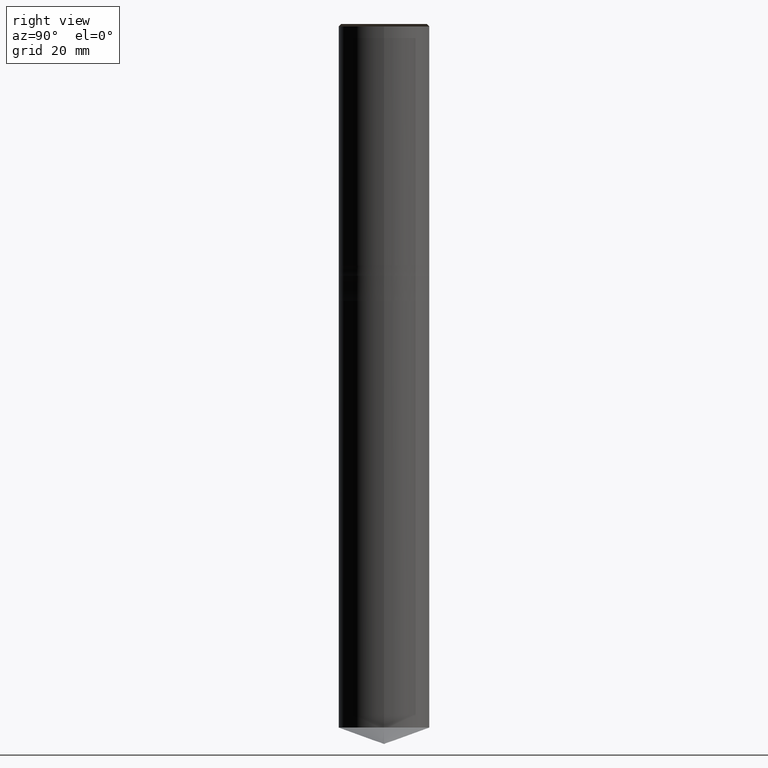
[diagram: clean part render]
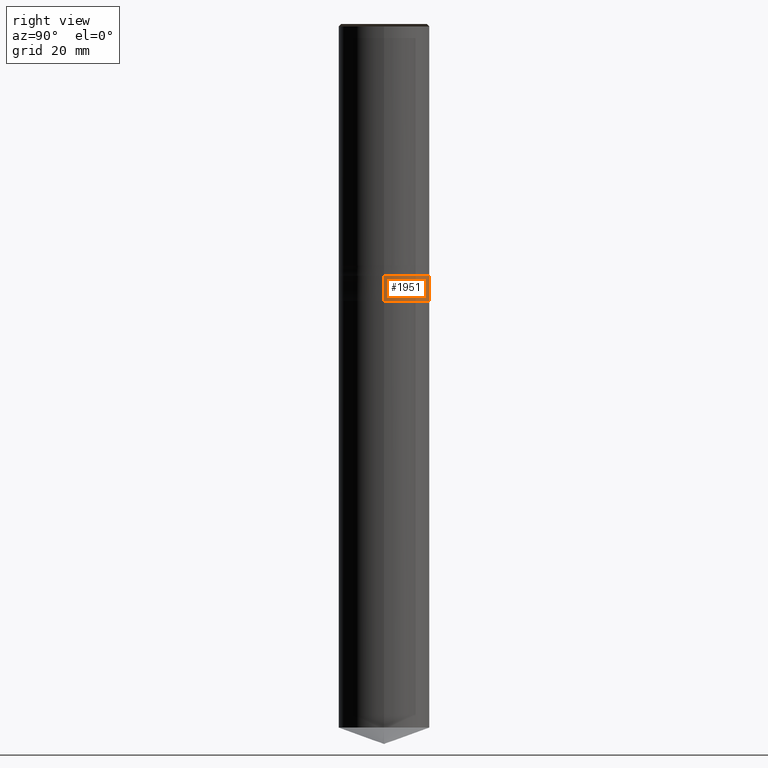
[diagram: same view with one face highlighted and labeled with its STEP entity id]
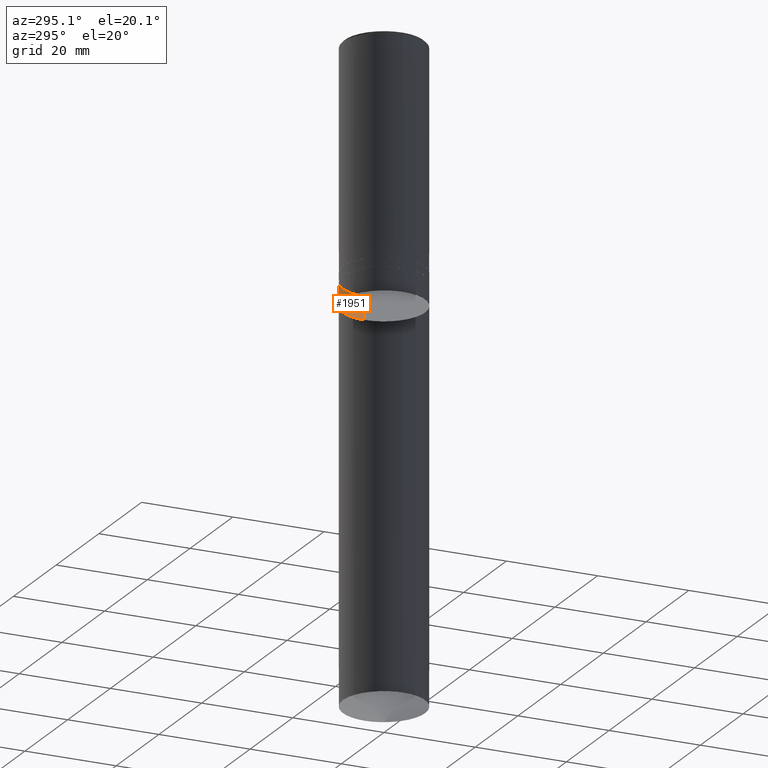
[diagram: same view with one face highlighted and labeled with its STEP entity id]
A machine part, right view. The second image highlights one B-rep face of the part: STEP entity #1951.
A second angle (auxiliary view) of the same face is appended — the face is thin or edge-on in the first view.
In plain terms, the highlighted face is a freeform B-spline surface patch.
Its self-contained STEP definition (entity closure, byte-faithful):
#1758=CARTESIAN_POINT('',(9.0,0.0,-7.0));
#1759=CARTESIAN_POINT('',(9.0,9.0,-7.0));
#1760=CARTESIAN_POINT('',(0.0,9.0,-7.0));
#1761=CARTESIAN_POINT('',(-9.0,9.0,-7.0));
#1762=CARTESIAN_POINT('',(-9.0,0.0,-7.0));
#1770=CARTESIAN_POINT('',(9.0,0.0,-2.0));
#1771=CARTESIAN_POINT('',(9.0,9.0,-2.0));
#1772=CARTESIAN_POINT('',(0.0,9.0,-2.0));
#1773=CARTESIAN_POINT('',(-9.0,9.0,-2.0));
#1774=CARTESIAN_POINT('',(-9.0,0.0,-2.0));
#1932=(
BOUNDED_SURFACE()
B_SPLINE_SURFACE(1,2,(
(#1758,#1759,#1760,#1761,#1762),
(#1770,#1771,#1772,#1773,#1774)
), .UNSPECIFIED.,.F.,.F.,.F.)
B_SPLINE_SURFACE_WITH_KNOTS((2,2),(3,2,3),(
0.0,1.0),(
0.0,0.5,1.0), .UNSPECIFIED.)
GEOMETRIC_REPRESENTATION_ITEM()
RATIONAL_B_SPLINE_SURFACE(((1.0,0.707106781187,1.0,0.707106781187,1.0),
(1.0,0.707106781187,1.0,0.707106781187,1.0)
))
REPRESENTATION_ITEM('')
SURFACE()
);
#1933=(
BOUNDED_CURVE()
B_SPLINE_CURVE(2,(#1762,#1761,#1760,#1759,#1758),.UNSPECIFIED.,.F.,.F.)
B_SPLINE_CURVE_WITH_KNOTS((3,2,3),
(0.0,0.5,1.0),.UNSPECIFIED.)
CURVE()
GEOMETRIC_REPRESENTATION_ITEM()
RATIONAL_B_SPLINE_CURVE((1.0,0.707106781187,1.0,0.707106781187,1.0))
REPRESENTATION_ITEM('')
);
#1934=(
BOUNDED_CURVE()
B_SPLINE_CURVE(1,(#1758,#1770),.UNSPECIFIED.,.F.,.F.)
B_SPLINE_CURVE_WITH_KNOTS((2,2),
(0.0,1.0),.UNSPECIFIED.)
CURVE()
GEOMETRIC_REPRESENTATION_ITEM()
RATIONAL_B_SPLINE_CURVE((1.0,1.0))
REPRESENTATION_ITEM('')
);
#1935=(
BOUNDED_CURVE()
B_SPLINE_CURVE(2,(#1770,#1771,#1772,#1773,#1774),.UNSPECIFIED.,.F.,.F.)
B_SPLINE_CURVE_WITH_KNOTS((3,2,3),
(0.0,0.5,1.0),.UNSPECIFIED.)
CURVE()
GEOMETRIC_REPRESENTATION_ITEM()
RATIONAL_B_SPLINE_CURVE((1.0,0.707106781187,1.0,0.707106781187,1.0))
REPRESENTATION_ITEM('')
);
#1936=(
BOUNDED_CURVE()
B_SPLINE_CURVE(1,(#1774,#1762),.UNSPECIFIED.,.F.,.F.)
B_SPLINE_CURVE_WITH_KNOTS((2,2),
(0.0,1.0),.UNSPECIFIED.)
CURVE()
GEOMETRIC_REPRESENTATION_ITEM()
RATIONAL_B_SPLINE_CURVE((1.0,1.0))
REPRESENTATION_ITEM('')
);
#1937=VERTEX_POINT('',#1758);
#1938=VERTEX_POINT('',#1762);
#1939=VERTEX_POINT('',#1770);
#1940=VERTEX_POINT('',#1774);
#1941=EDGE_CURVE('',#1938,#1937,#1933,.T.);
#1942=EDGE_CURVE('',#1937,#1939,#1934,.T.);
#1943=EDGE_CURVE('',#1939,#1940,#1935,.T.);
#1944=EDGE_CURVE('',#1940,#1938,#1936,.T.);
#1945=ORIENTED_EDGE('',*,*,#1941,.T.);
#1946=ORIENTED_EDGE('',*,*,#1942,.T.);
#1947=ORIENTED_EDGE('',*,*,#1943,.T.);
#1948=ORIENTED_EDGE('',*,*,#1944,.T.);
#1949=EDGE_LOOP('',(#1945,#1946,#1947,#1948));
#1950=FACE_OUTER_BOUND('',#1949,.T.);
#1951=ADVANCED_FACE('',(#1950),#1932,.T.);